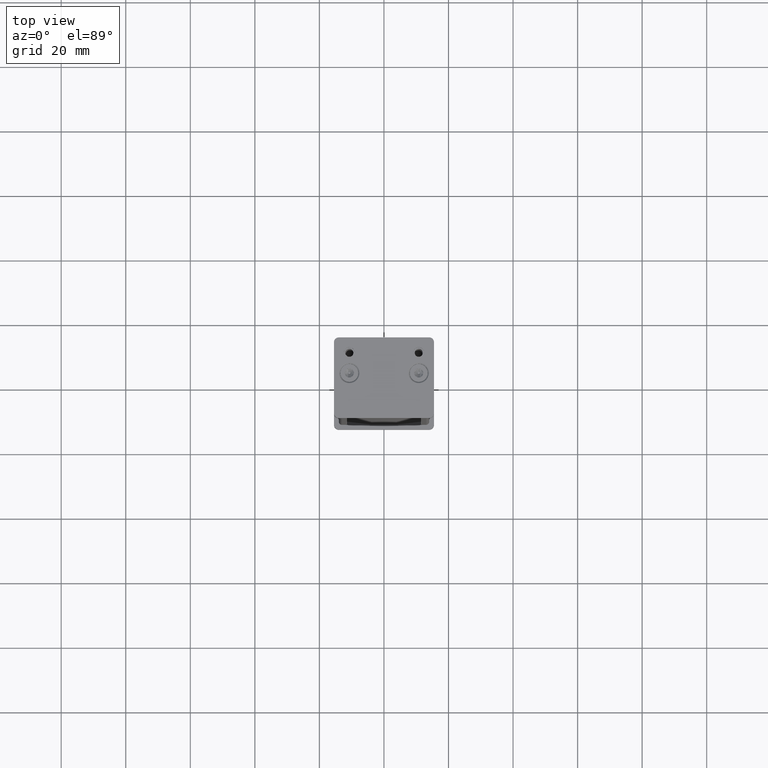
[diagram: clean part render]
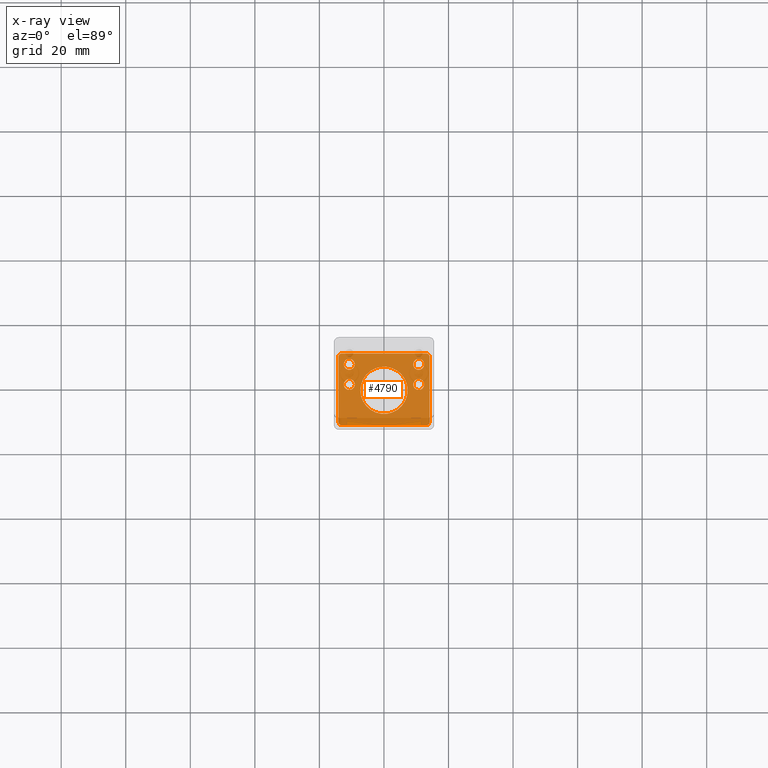
[diagram: x-ray — body ghosted, one internal face saturated and labeled with its STEP entity id]
A machine part, top view, then the same camera in x-ray: the body is ghosted and one INTERNAL B-rep face — a face not visible from any outside direction — is saturated and labeled: STEP entity #4790.
In plain terms, the highlighted planar face has unit normal (0, 0, -1).
Its self-contained STEP definition (entity closure, byte-faithful):
#35 = AXIS2_PLACEMENT_3D ( 'NONE', #3507, #1582, #10333 ) ;
#214 = ORIENTED_EDGE ( 'NONE', *, *, #6960, .T. ) ;
#271 = CIRCLE ( 'NONE', #12989, 7.327766608379002733 ) ;
#308 = ORIENTED_EDGE ( 'NONE', *, *, #20092, .T. ) ;
#703 = EDGE_CURVE ( 'NONE', #17322, #12727, #4748, .T. ) ;
#872 = CARTESIAN_POINT ( 'NONE',  ( -12.45000000000000817, -103.0000000000000000, -1.499999999999992228 ) ) ;
#1346 = DIRECTION ( 'NONE',  ( 0.000000000000000000, -1.000000000000000000, 0.000000000000000000 ) ) ;
#1582 = DIRECTION ( 'NONE',  ( 0.000000000000000000, -1.000000000000000000, 0.000000000000000000 ) ) ;
#1599 = AXIS2_PLACEMENT_3D ( 'NONE', #5716, #15827, #12440 ) ;
#1712 = CARTESIAN_POINT ( 'NONE',  ( -14.10000000000000320, -103.0000000000000000, -11.09999999999998366 ) ) ;
#2013 = DIRECTION ( 'NONE',  ( -1.397585237217057254E-16, -0.000000000000000000, -1.000000000000000000 ) ) ;
#2047 = LINE ( 'NONE', #1712, #14563 ) ;
#2089 = CARTESIAN_POINT ( 'NONE',  ( -12.45000000000000817, -103.0000000000000000, -7.749999999999982236 ) ) ;
#2126 = VECTOR ( 'NONE', #18429, 1000.000000000000000 ) ;
#2477 = DIRECTION ( 'NONE',  ( 0.000000000000000000, 1.000000000000000000, 0.000000000000000000 ) ) ;
#2543 = CARTESIAN_POINT ( 'NONE',  ( 10.75000000000000000, -103.0000000000000000, -7.749999999999998224 ) ) ;
#2561 = CARTESIAN_POINT ( 'NONE',  ( 10.75000000000000000, -103.0000000000000000, -1.499999999999989564 ) ) ;
#2584 = EDGE_CURVE ( 'NONE', #9086, #22157, #8311, .T. ) ;
#2610 = CIRCLE ( 'NONE', #21508, 1.000000000000000888 ) ;
#2620 = CIRCLE ( 'NONE', #18249, 1.700000000000000178 ) ;
#3177 = CARTESIAN_POINT ( 'NONE',  ( 14.10000000000000320, -103.0000000000000000, 11.10000000000001030 ) ) ;
#3496 = CIRCLE ( 'NONE', #20564, 1.700000000000000178 ) ;
#3507 = CARTESIAN_POINT ( 'NONE',  ( -10.75000000000000711, -103.0000000000000000, -7.749999999999982236 ) ) ;
#3644 = CARTESIAN_POINT ( 'NONE',  ( 7.327581690216503851, -103.0000000000000000, 0.2479419531465545390 ) ) ;
#3703 = DIRECTION ( 'NONE',  ( 0.000000000000000000, 1.000000000000000000, 0.000000000000000000 ) ) ;
#3766 = CIRCLE ( 'NONE', #1599, 1.700000000000000178 ) ;
#4201 = ORIENTED_EDGE ( 'NONE', *, *, #2584, .T. ) ;
#4422 = ORIENTED_EDGE ( 'NONE', *, *, #8099, .T. ) ;
#4573 = EDGE_LOOP ( 'NONE', ( #4422, #13286 ) ) ;
#4582 = DIRECTION ( 'NONE',  ( 0.000000000000000000, -1.000000000000000000, 0.000000000000000000 ) ) ;
#4630 = FACE_OUTER_BOUND ( 'NONE', #9350, .T. ) ;
#4748 = CIRCLE ( 'NONE', #35, 1.700000000000000178 ) ;
#4775 = AXIS2_PLACEMENT_3D ( 'NONE', #16744, #11289, #13323 ) ;
#4790 = ADVANCED_FACE ( 'NONE', ( #4630, #13386, #20543, #11689, #18509, #6574 ), #22361, .F. ) ;
#4997 = CARTESIAN_POINT ( 'NONE',  ( -9.050000000000007816, -103.0000000000000000, -1.499999999999992228 ) ) ;
#5088 = AXIS2_PLACEMENT_3D ( 'NONE', #9468, #17890, #16637 ) ;
#5224 = CARTESIAN_POINT ( 'NONE',  ( 13.10000000000000320, -103.0000000000000000, 10.10000000000000142 ) ) ;
#5246 = CARTESIAN_POINT ( 'NONE',  ( 9.050000000000006040, -103.0000000000000000, -1.499999999999989564 ) ) ;
#5267 = VERTEX_POINT ( 'NONE', #3644 ) ;
#5356 = ORIENTED_EDGE ( 'NONE', *, *, #9827, .T. ) ;
#5716 = CARTESIAN_POINT ( 'NONE',  ( -10.75000000000000711, -103.0000000000000000, -1.499999999999992228 ) ) ;
#5887 = DIRECTION ( 'NONE',  ( 1.000000000000000000, 0.000000000000000000, 0.000000000000000000 ) ) ;
#6037 = EDGE_CURVE ( 'NONE', #7175, #6992, #8301, .T. ) ;
#6517 = ORIENTED_EDGE ( 'NONE', *, *, #15304, .T. ) ;
#6574 = FACE_BOUND ( 'NONE', #10236, .T. ) ;
#6630 = CARTESIAN_POINT ( 'NONE',  ( 14.10000000000000320, -103.0000000000000000, 10.10000000000000142 ) ) ;
#6808 = CIRCLE ( 'NONE', #15140, 0.9999999999999991118 ) ;
#6881 = VERTEX_POINT ( 'NONE', #11999 ) ;
#6960 = EDGE_CURVE ( 'NONE', #16846, #19589, #20199, .T. ) ;
#6967 = CARTESIAN_POINT ( 'NONE',  ( -7.327581690205005494, -103.0000000000000000, 0.3520580468533728857 ) ) ;
#6992 = VERTEX_POINT ( 'NONE', #19380 ) ;
#7063 = EDGE_LOOP ( 'NONE', ( #308, #4201 ) ) ;
#7175 = VERTEX_POINT ( 'NONE', #21988 ) ;
#7379 = VERTEX_POINT ( 'NONE', #22209 ) ;
#7545 = CIRCLE ( 'NONE', #16620, 7.327766608379002733 ) ;
#7871 = ORIENTED_EDGE ( 'NONE', *, *, #10471, .T. ) ;
#8014 = VERTEX_POINT ( 'NONE', #21390 ) ;
#8034 = ORIENTED_EDGE ( 'NONE', *, *, #6037, .T. ) ;
#8046 = CARTESIAN_POINT ( 'NONE',  ( -13.10000000000000497, -103.0000000000000000, -10.09999999999998188 ) ) ;
#8099 = EDGE_CURVE ( 'NONE', #21226, #20697, #3496, .T. ) ;
#8284 = ORIENTED_EDGE ( 'NONE', *, *, #8922, .T. ) ;
#8286 = DIRECTION ( 'NONE',  ( 1.000000000000000000, 0.000000000000000000, 0.000000000000000000 ) ) ;
#8301 = LINE ( 'NONE', #3177, #2126 ) ;
#8311 = CIRCLE ( 'NONE', #10121, 1.700000000000000178 ) ;
#8432 = VECTOR ( 'NONE', #2013, 1000.000000000000000 ) ;
#8529 = ORIENTED_EDGE ( 'NONE', *, *, #22130, .T. ) ;
#8720 = AXIS2_PLACEMENT_3D ( 'NONE', #19300, #3703, #17587 ) ;
#8759 = ORIENTED_EDGE ( 'NONE', *, *, #17690, .T. ) ;
#8802 = DIRECTION ( 'NONE',  ( 1.000000000000000000, 0.000000000000000000, -3.826595902890015243E-16 ) ) ;
#8868 = EDGE_CURVE ( 'NONE', #13819, #5267, #7545, .T. ) ;
#8908 = LINE ( 'NONE', #15831, #17023 ) ;
#8922 = EDGE_CURVE ( 'NONE', #7379, #8014, #6808, .T. ) ;
#9086 = VERTEX_POINT ( 'NONE', #16803 ) ;
#9350 = EDGE_LOOP ( 'NONE', ( #7871, #8284, #8529, #12163, #8034, #21432, #19481, #8759 ) ) ;
#9468 = CARTESIAN_POINT ( 'NONE',  ( -10.75000000000000711, -103.0000000000000000, -7.749999999999982236 ) ) ;
#9497 = DIRECTION ( 'NONE',  ( 1.000000000000000000, 0.000000000000000000, -3.826595902890015243E-16 ) ) ;
#9827 = EDGE_CURVE ( 'NONE', #5267, #13819, #271, .T. ) ;
#10083 = DIRECTION ( 'NONE',  ( 0.000000000000000000, -1.000000000000000000, 0.000000000000000000 ) ) ;
#10108 = ORIENTED_EDGE ( 'NONE', *, *, #21847, .T. ) ;
#10121 = AXIS2_PLACEMENT_3D ( 'NONE', #2543, #4582, #18578 ) ;
#10236 = EDGE_LOOP ( 'NONE', ( #12067, #5356 ) ) ;
#10319 = LINE ( 'NONE', #12254, #8432 ) ;
#10333 = DIRECTION ( 'NONE',  ( 1.000000000000000000, 0.000000000000000000, 0.000000000000000000 ) ) ;
#10471 = EDGE_CURVE ( 'NONE', #6881, #7379, #8908, .T. ) ;
#10740 = VERTEX_POINT ( 'NONE', #6630 ) ;
#10811 = DIRECTION ( 'NONE',  ( 0.000000000000000000, -1.000000000000000000, 0.000000000000000000 ) ) ;
#10904 = CIRCLE ( 'NONE', #8720, 0.9999999999999991118 ) ;
#11289 = DIRECTION ( 'NONE',  ( 0.000000000000000000, 1.000000000000000000, 0.000000000000000000 ) ) ;
#11490 = DIRECTION ( 'NONE',  ( 0.000000000000000000, -1.000000000000000000, 0.000000000000000000 ) ) ;
#11501 = CARTESIAN_POINT ( 'NONE',  ( -14.10000000000000675, -103.0000000000000000, 10.10000000000000675 ) ) ;
#11689 = FACE_BOUND ( 'NONE', #7063, .T. ) ;
#11960 = DIRECTION ( 'NONE',  ( 0.000000000000000000, 1.000000000000000000, 0.000000000000000000 ) ) ;
#11999 = CARTESIAN_POINT ( 'NONE',  ( 13.09999999999999787, -103.0000000000000000, -11.09999999999999787 ) ) ;
#12067 = ORIENTED_EDGE ( 'NONE', *, *, #8868, .T. ) ;
#12163 = ORIENTED_EDGE ( 'NONE', *, *, #12327, .T. ) ;
#12254 = CARTESIAN_POINT ( 'NONE',  ( 14.09999999999999787, -103.0000000000000000, -11.09999999999999787 ) ) ;
#12327 = EDGE_CURVE ( 'NONE', #21295, #7175, #10904, .T. ) ;
#12329 = CARTESIAN_POINT ( 'NONE',  ( -5.204170427930421283E-15, -103.0000000000000000, 9.107298248878237246E-15 ) ) ;
#12440 = DIRECTION ( 'NONE',  ( 1.000000000000000000, 0.000000000000000000, -3.826595902890015243E-16 ) ) ;
#12727 = VERTEX_POINT ( 'NONE', #2089 ) ;
#12904 = DIRECTION ( 'NONE',  ( 0.000000000000000000, -1.000000000000000000, 0.000000000000000000 ) ) ;
#12938 = AXIS2_PLACEMENT_3D ( 'NONE', #13797, #20740, #8802 ) ;
#12989 = AXIS2_PLACEMENT_3D ( 'NONE', #19788, #10811, #17746 ) ;
#13235 = EDGE_LOOP ( 'NONE', ( #6517, #214 ) ) ;
#13286 = ORIENTED_EDGE ( 'NONE', *, *, #15924, .T. ) ;
#13323 = DIRECTION ( 'NONE',  ( 1.000000000000000000, 0.000000000000000000, 0.000000000000000000 ) ) ;
#13386 = FACE_BOUND ( 'NONE', #4573, .T. ) ;
#13797 = CARTESIAN_POINT ( 'NONE',  ( -10.75000000000000711, -103.0000000000000000, -1.499999999999992228 ) ) ;
#13819 = VERTEX_POINT ( 'NONE', #6967 ) ;
#13901 = DIRECTION ( 'NONE',  ( -1.000000000000000000, 0.000000000000000000, 1.397585237217057254E-16 ) ) ;
#14402 = DIRECTION ( 'NONE',  ( -0.9999747647293405484, 0.000000000000000000, 0.007104217374207260141 ) ) ;
#14563 = VECTOR ( 'NONE', #17404, 1000.000000000000000 ) ;
#14784 = CARTESIAN_POINT ( 'NONE',  ( 12.44999999999999929, -103.0000000000000000, -1.499999999999988676 ) ) ;
#15054 = AXIS2_PLACEMENT_3D ( 'NONE', #2561, #12904, #9497 ) ;
#15140 = AXIS2_PLACEMENT_3D ( 'NONE', #8046, #2477, #5887 ) ;
#15304 = EDGE_CURVE ( 'NONE', #19589, #16846, #3766, .T. ) ;
#15560 = EDGE_LOOP ( 'NONE', ( #17397, #10108 ) ) ;
#15827 = DIRECTION ( 'NONE',  ( 0.000000000000000000, -1.000000000000000000, 0.000000000000000000 ) ) ;
#15831 = CARTESIAN_POINT ( 'NONE',  ( 14.09999999999999787, -103.0000000000000000, -11.09999999999999787 ) ) ;
#15924 = EDGE_CURVE ( 'NONE', #20697, #21226, #17234, .T. ) ;
#16118 = CARTESIAN_POINT ( 'NONE',  ( -5.204170427930421283E-15, -103.0000000000000000, 0.3000000000000038192 ) ) ;
#16255 = AXIS2_PLACEMENT_3D ( 'NONE', #12329, #10083, #21925 ) ;
#16381 = CIRCLE ( 'NONE', #5088, 1.700000000000000178 ) ;
#16406 = VERTEX_POINT ( 'NONE', #18417 ) ;
#16620 = AXIS2_PLACEMENT_3D ( 'NONE', #16118, #17831, #14402 ) ;
#16637 = DIRECTION ( 'NONE',  ( 1.000000000000000000, 0.000000000000000000, 0.000000000000000000 ) ) ;
#16744 = CARTESIAN_POINT ( 'NONE',  ( 13.09999999999999609, -103.0000000000000000, -10.09999999999999787 ) ) ;
#16803 = CARTESIAN_POINT ( 'NONE',  ( 9.050000000000006040, -103.0000000000000000, -7.749999999999998224 ) ) ;
#16846 = VERTEX_POINT ( 'NONE', #872 ) ;
#17023 = VECTOR ( 'NONE', #13901, 1000.000000000000000 ) ;
#17234 = CIRCLE ( 'NONE', #15054, 1.700000000000000178 ) ;
#17292 = DIRECTION ( 'NONE',  ( 1.000000000000000000, 0.000000000000000000, 1.734723475976805517E-15 ) ) ;
#17322 = VERTEX_POINT ( 'NONE', #18149 ) ;
#17397 = ORIENTED_EDGE ( 'NONE', *, *, #703, .T. ) ;
#17404 = DIRECTION ( 'NONE',  ( 1.397585237217057254E-16, 0.000000000000000000, 1.000000000000000000 ) ) ;
#17517 = CARTESIAN_POINT ( 'NONE',  ( 12.44999999999999574, -103.0000000000000000, -7.749999999999998224 ) ) ;
#17587 = DIRECTION ( 'NONE',  ( 1.000000000000000000, 0.000000000000000000, 0.000000000000000000 ) ) ;
#17690 = EDGE_CURVE ( 'NONE', #16406, #6881, #19309, .T. ) ;
#17746 = DIRECTION ( 'NONE',  ( 0.9999747647293405484, 0.000000000000000000, -0.007104217374207260141 ) ) ;
#17822 = EDGE_CURVE ( 'NONE', #6992, #10740, #2610, .T. ) ;
#17831 = DIRECTION ( 'NONE',  ( 0.000000000000000000, -1.000000000000000000, 0.000000000000000000 ) ) ;
#17890 = DIRECTION ( 'NONE',  ( 0.000000000000000000, -1.000000000000000000, 0.000000000000000000 ) ) ;
#18149 = CARTESIAN_POINT ( 'NONE',  ( -9.050000000000007816, -103.0000000000000000, -7.749999999999982236 ) ) ;
#18249 = AXIS2_PLACEMENT_3D ( 'NONE', #22272, #1346, #8286 ) ;
#18417 = CARTESIAN_POINT ( 'NONE',  ( 14.09999999999999787, -103.0000000000000000, -10.09999999999999787 ) ) ;
#18429 = DIRECTION ( 'NONE',  ( 1.000000000000000000, 0.000000000000000000, -1.397585237217057254E-16 ) ) ;
#18509 = FACE_BOUND ( 'NONE', #15560, .T. ) ;
#18578 = DIRECTION ( 'NONE',  ( 1.000000000000000000, 0.000000000000000000, 0.000000000000000000 ) ) ;
#18756 = DIRECTION ( 'NONE',  ( 1.000000000000000000, 0.000000000000000000, -3.826595902890015243E-16 ) ) ;
#19300 = CARTESIAN_POINT ( 'NONE',  ( -13.10000000000000853, -103.0000000000000000, 10.10000000000000675 ) ) ;
#19309 = CIRCLE ( 'NONE', #4775, 0.9999999999999991118 ) ;
#19380 = CARTESIAN_POINT ( 'NONE',  ( 13.10000000000000320, -103.0000000000000000, 11.10000000000001030 ) ) ;
#19481 = ORIENTED_EDGE ( 'NONE', *, *, #20159, .T. ) ;
#19589 = VERTEX_POINT ( 'NONE', #4997 ) ;
#19788 = CARTESIAN_POINT ( 'NONE',  ( -5.204170427930421283E-15, -103.0000000000000000, 0.3000000000000038192 ) ) ;
#20092 = EDGE_CURVE ( 'NONE', #22157, #9086, #2620, .T. ) ;
#20159 = EDGE_CURVE ( 'NONE', #10740, #16406, #10319, .T. ) ;
#20199 = CIRCLE ( 'NONE', #12938, 1.700000000000000178 ) ;
#20242 = CARTESIAN_POINT ( 'NONE',  ( 10.75000000000000000, -103.0000000000000000, -1.499999999999989564 ) ) ;
#20543 = FACE_BOUND ( 'NONE', #13235, .T. ) ;
#20564 = AXIS2_PLACEMENT_3D ( 'NONE', #20242, #11490, #18756 ) ;
#20697 = VERTEX_POINT ( 'NONE', #5246 ) ;
#20740 = DIRECTION ( 'NONE',  ( 0.000000000000000000, -1.000000000000000000, 0.000000000000000000 ) ) ;
#21226 = VERTEX_POINT ( 'NONE', #14784 ) ;
#21295 = VERTEX_POINT ( 'NONE', #11501 ) ;
#21390 = CARTESIAN_POINT ( 'NONE',  ( -14.10000000000000320, -103.0000000000000000, -10.09999999999998188 ) ) ;
#21432 = ORIENTED_EDGE ( 'NONE', *, *, #17822, .T. ) ;
#21508 = AXIS2_PLACEMENT_3D ( 'NONE', #5224, #11960, #17292 ) ;
#21847 = EDGE_CURVE ( 'NONE', #12727, #17322, #16381, .T. ) ;
#21925 = DIRECTION ( 'NONE',  ( 1.000000000000000000, 0.000000000000000000, 1.377972324345833111E-16 ) ) ;
#21988 = CARTESIAN_POINT ( 'NONE',  ( -13.10000000000000853, -103.0000000000000000, 11.10000000000000675 ) ) ;
#22130 = EDGE_CURVE ( 'NONE', #8014, #21295, #2047, .T. ) ;
#22157 = VERTEX_POINT ( 'NONE', #17517 ) ;
#22209 = CARTESIAN_POINT ( 'NONE',  ( -13.10000000000000497, -103.0000000000000000, -11.09999999999998366 ) ) ;
#22272 = CARTESIAN_POINT ( 'NONE',  ( 10.75000000000000000, -103.0000000000000000, -7.749999999999998224 ) ) ;
#22361 = PLANE ( 'NONE',  #16255 ) ;